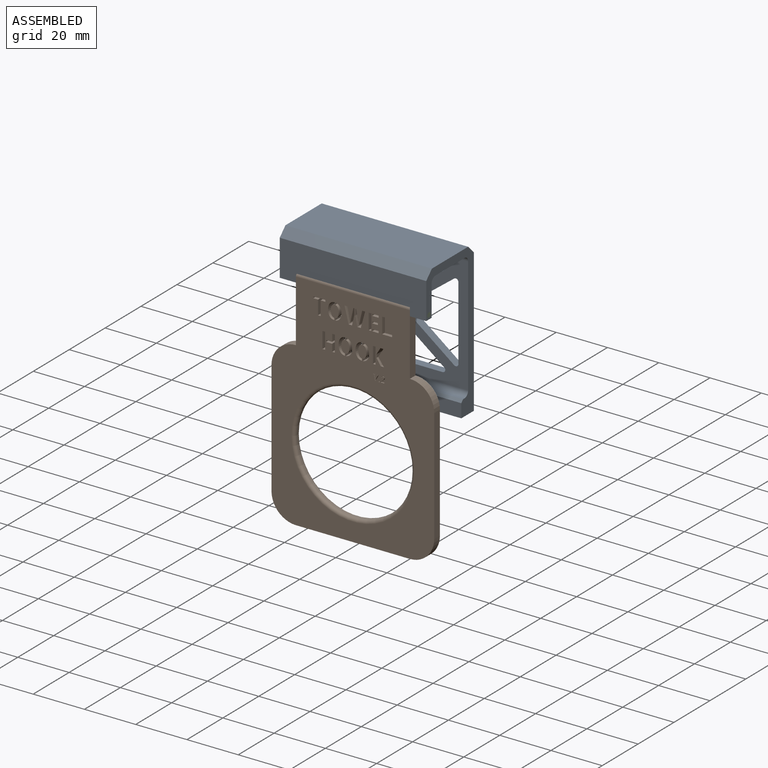
[diagram: assembled view]
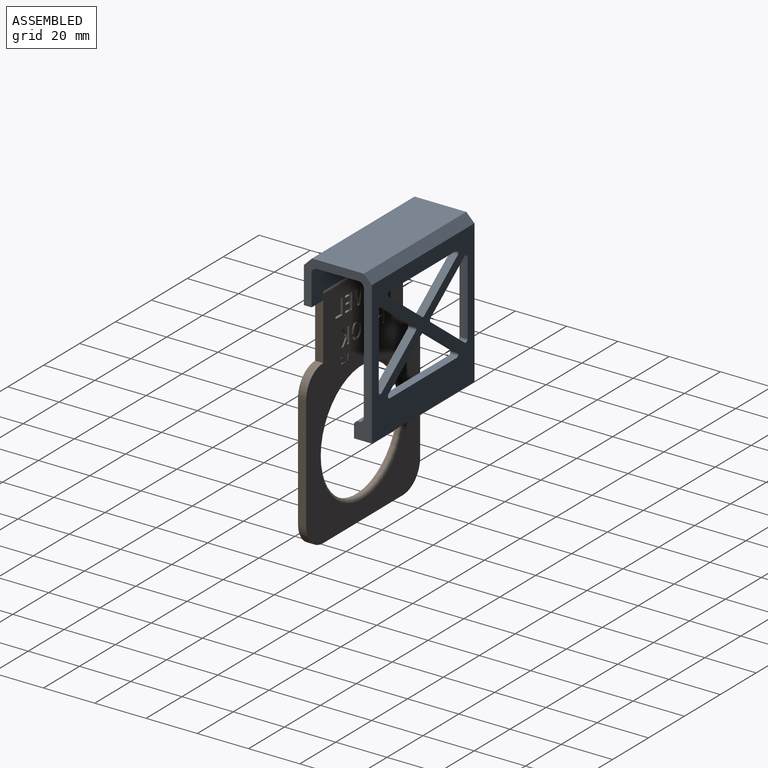
[diagram: assembled view, second angle]
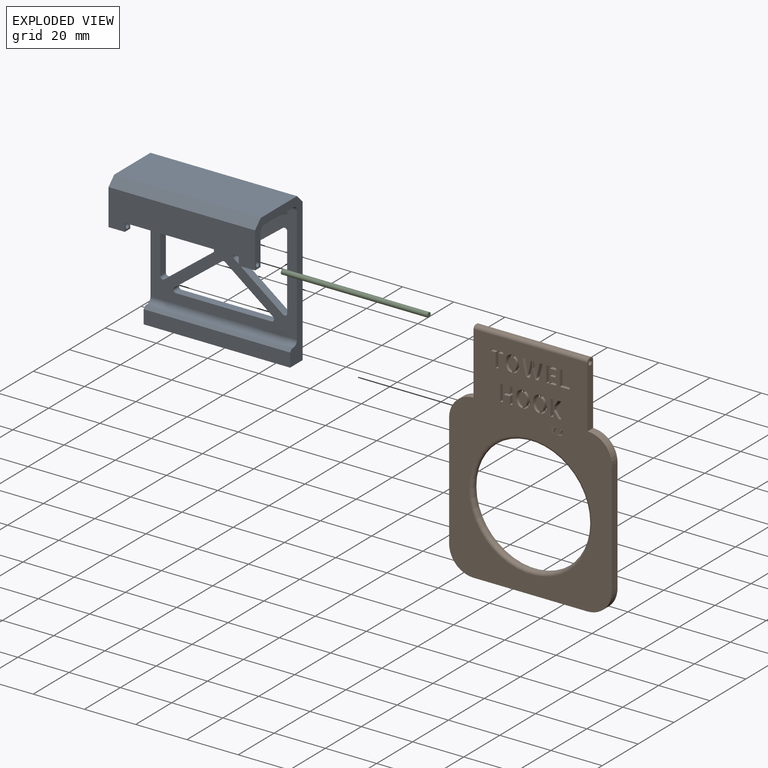
[diagram: exploded view]
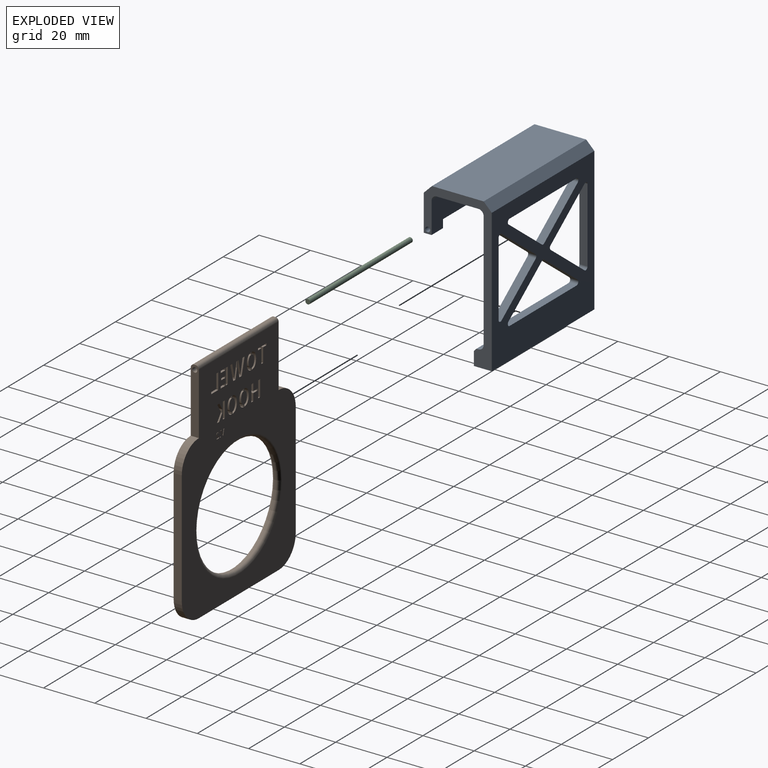
[diagram: exploded view, second angle]
ASSEMBLY  parts=3 mates=2
PART A: 48 faces, bbox 57.2x26.5x59.1 mm
  f0: plane 57.15x45.47mm, normal (0,-1,0), area 1180.6mm2, adj f11,f12,f17,f22,f24,f25,f26,f27
  f1: plane 57.15x55.88mm, normal (0,1,0), area 1775.8mm2, adj f10,f11,f12,f18,f24,f25,f26,f27
  f2: plane 6.35x3.05mm, normal (0,0,-1), area 19.4mm2, adj f3,f4,f11,f14
  f3: plane 57.15x14.12mm, normal (0,-1,0), area 665.7mm2, adj f2,f6,f11,f12,f13,f14,f15,f19
  f4: plane 57.15x12.09mm, normal (0,1,0), area 549.5mm2, adj f2,f6,f11,f12,f13,f14,f15,f16
  f5: plane 57.15x20.19mm, normal (0,0,1), area 1154mm2, adj f11,f12,f18,f19
  f6: plane 6.35x3.05mm, normal (0,0,-1), area 19.4mm2, adj f3,f4,f12,f13
  f7: plane 57.15x16.26mm, normal (0,0,-1), area 929mm2, adj f11,f12,f16,f17
  f8: plane 57.15x0.76mm, normal (0,0,1), area 43.5mm2, adj f11,f12,f22,f23
  f9: plane 57.15x5.33mm, normal (0,-1,0), area 304.8mm2, adj f10,f11,f12,f23
  f10: plane 57.15x6.99mm, normal (0,0,-1), area 399.2mm2, adj f1,f9,f11,f12
  f11: plane 59.06x26.54mm, normal (1,0,0), area 318.1mm2, adj f0,f1,f2,f3,f4,f5,f7,f8
  f12: plane 59.06x26.54mm, normal (-1,0,0), area 318.1mm2, adj f0,f1,f3,f4,f5,f6,f7,f8
  f13: plane 3.18x3.05mm, normal (1,0,0), area 6.8mm2, adj f3,f4,f6,f15,f21
  f14: plane 3.18x3.05mm, normal (-1,0,0), area 6.8mm2, adj f2,f3,f4,f15,f20
  f15: plane 44.45x3.05mm, normal (0,0,-1), area 135.5mm2, adj f3,f4,f13,f14
  f16: cylinder r=2.03mm len=57.15mm, axis (1,0,0), area 182.4mm2, adj f4,f7,f11,f12
  f17: cylinder r=2.03mm len=57.15mm, axis (1,0,0), area 182.4mm2, adj f0,f7,f11,f12
  f18: plane 57.15x3.18mm, normal (0,0.71,0.71), area 256.6mm2, adj f1,f5,f11,f12
  f19: plane 57.15x3.18mm, normal (0,-0.71,0.71), area 256.6mm2, adj f3,f5,f11,f12
  f20: cylinder r=0.95mm len=6.35mm, axis (-1,0,0), area 38mm2, adj f11,f14
  f21: cylinder r=0.95mm len=6.35mm, axis (-1,0,0), area 38mm2, adj f12,f13
  f22: cylinder r=2.03mm len=57.15mm, axis (1,0,0), area 182.4mm2, adj f0,f8,f11,f12
  f23: plane 57.15x1.02mm, normal (0,-0.71,0.71), area 82.1mm2, adj f8,f9,f11,f12
  f24: plane 37.25x3.18mm, normal (0,0,-1), area 118.3mm2, adj f0,f1,f25,f29
  f25: cylinder r=1.02mm len=3.18mm, axis (0,1,0), area 8mm2, adj f0,f1,f24,f26
  f26: plane 18.62x14.23mm, normal (-0.61,0,0.79), area 74.4mm2, adj f0,f1,f25,f27
  f27: cylinder r=1.02mm len=3.18mm, axis (0,1,0), area 4.2mm2, adj f0,f1,f26,f28
  f28: plane 18.62x14.23mm, normal (0.61,0,0.79), area 74.4mm2, adj f0,f1,f27,f29
  f29: cylinder r=1.02mm len=3.18mm, axis (0,1,0), area 8mm2, adj f0,f1,f24,f28
  f30: plane 28.94x3.18mm, normal (1,0,0), area 91.9mm2, adj f0,f1,f31,f35
  f31: cylinder r=1.02mm len=3.18mm, axis (0,1,0), area 7.2mm2, adj f0,f1,f30,f32
  f32: plane 18.94x14.47mm, normal (-0.61,0,-0.79), area 75.7mm2, adj f0,f1,f31,f33
  f33: cylinder r=1.02mm len=3.18mm, axis (0,1,0), area 5.9mm2, adj f0,f1,f32,f34
  f34: plane 18.94x14.47mm, normal (-0.61,0,0.79), area 75.7mm2, adj f0,f1,f33,f35
  f35: cylinder r=1.02mm len=3.18mm, axis (0,1,0), area 7.2mm2, adj f0,f1,f30,f34
  f36: cylinder r=1.02mm len=3.18mm, axis (0,1,0), area 8mm2, adj f0,f1,f37,f41
  f37: plane 37.25x3.18mm, normal (0,0,1), area 118.3mm2, adj f0,f1,f36,f38
  f38: cylinder r=1.02mm len=3.18mm, axis (0,1,0), area 8mm2, adj f0,f1,f37,f39
  f39: plane 18.62x14.23mm, normal (0.61,0,-0.79), area 74.4mm2, adj f0,f1,f38,f40
  f40: cylinder r=1.02mm len=3.18mm, axis (0,1,0), area 4.2mm2, adj f0,f1,f39,f41
  f41: plane 18.62x14.23mm, normal (-0.61,0,-0.79), area 74.4mm2, adj f0,f1,f36,f40
  f42: plane 18.94x14.47mm, normal (0.61,0,-0.79), area 75.7mm2, adj f0,f1,f43,f47
  f43: cylinder r=1.02mm len=3.18mm, axis (0,1,0), area 7.2mm2, adj f0,f1,f42,f44
  f44: plane 28.94x3.18mm, normal (-1,0,0), area 91.9mm2, adj f0,f1,f43,f45
  f45: cylinder r=1.02mm len=3.18mm, axis (0,1,0), area 7.2mm2, adj f0,f1,f44,f46
  f46: plane 18.94x14.47mm, normal (0.61,0,0.79), area 75.7mm2, adj f0,f1,f45,f47
  f47: cylinder r=1.02mm len=3.18mm, axis (0,1,0), area 5.9mm2, adj f0,f1,f42,f46
PART B: 240 faces, bbox 63.5x88.9x3.2 mm
  f0: plane 87.63x63.5mm, normal (0,0,1), area 3089.9mm2, adj f2,f3,f4,f5,f6,f7,f8,f9
  f1: plane 87.63x63.5mm, normal (0,0,-1), area 3089.9mm2, adj f2,f3,f4,f5,f6,f7,f8,f9
  f2: plane 44.45x3.18mm, normal (-1,0,0), area 141.1mm2, adj f0,f1,f3,f8
  f3: cylinder r=9.53mm len=9.53mm, axis (0,0,-1), area 47.5mm2, adj f0,f1,f2,f4
  f4: plane 44.45x3.18mm, normal (0,-1,0), area 141.1mm2, adj f0,f1,f3,f5
  f5: cylinder r=9.53mm len=9.53mm, axis (0,0,-1), area 47.5mm2, adj f0,f1,f4,f6
  f6: plane 44.45x3.18mm, normal (1,0,0), area 141.1mm2, adj f0,f1,f5,f7
  f7: cylinder r=9.53mm len=9.53mm, axis (0,0,-1), area 47.5mm2, adj f0,f1,f6,f10
  f8: cylinder r=9.53mm len=9.53mm, axis (0,0,-1), area 47.5mm2, adj f0,f1,f2,f9
  f9: plane 25.4x3.18mm, normal (-1,0,0), area 77.1mm2, adj f0,f1,f8,f11,f12,f13,f14
  f10: plane 25.4x3.18mm, normal (1,0,0), area 77.1mm2, adj f0,f1,f7,f11,f12,f13,f14
  f11: plane 44.45x0.64mm, normal (0,1,0), area 28.2mm2, adj f9,f10,f13,f14
  f12: cylinder r=0.95mm len=44.45mm, axis (1,0,0), area 266mm2, adj f9,f10
  f13: cylinder r=1.27mm len=44.45mm, axis (1,0,0), area 88.7mm2, adj f0,f9,f10,f11
  f14: cylinder r=1.27mm len=44.45mm, axis (-1,0,0), area 88.7mm2, adj f1,f9,f10,f11
  f15: plane 3.18x0.69mm, normal (-1,0,0), area 2.2mm2, adj f0,f1,f16,f22
  f16: plane 4.72x3.18mm, normal (0,-1,0), area 15mm2, adj f0,f1,f15,f17
  f17: plane 3.18x0.69mm, normal (1,0,0), area 2.2mm2, adj f0,f1,f16,f18
  f18: plane 3.18x1.85mm, normal (0,1,0), area 5.9mm2, adj f0,f1,f17,f19
  f19: plane 5.51x3.18mm, normal (1,0,0), area 17.5mm2, adj f0,f1,f18,f20
  f20: plane 3.18x1.02mm, normal (0,1,0), area 3.2mm2, adj f0,f1,f19,f21
  f21: plane 5.51x3.18mm, normal (-1,0,0), area 17.5mm2, adj f0,f1,f20,f22
  f22: plane 3.18x1.85mm, normal (0,1,0), area 5.9mm2, adj f0,f1,f15,f21
  f23: plane 3.18x3.09mm, normal (-0.81,-0.58,0), area 12.1mm2, adj f0,f1,f24,f29
  f24: plane 3.27x3.18mm, normal (-0.85,0.53,0), area 12.2mm2, adj f0,f1,f23,f25
  f25: plane 3.18x1.18mm, normal (0,-1,0), area 3.7mm2, adj f0,f1,f24,f26
  f26: plane 3.18x2.6mm, normal (0.86,-0.51,0), area 9.6mm2, adj f0,f1,f25,f27
  f27: plane 3.18x1.26mm, normal (1,0,0), area 4mm2, adj f0,f1,f26,f28
  f28: plane 3.18x2.5mm, normal (0.83,0.56,0), area 9.6mm2, adj f0,f1,f27,f29
  f29: plane 3.18x1.2mm, normal (0,1,0), area 3.8mm2, adj f0,f1,f23,f28
  f30: plane 3.18x0.09mm, normal (-0.98,0.18,0), area 0.3mm2, adj f0,f1,f31,f44
  f31: plane 3.18x0.69mm, normal (0,-1,0), area 2.2mm2, adj f0,f1,f30,f32
  f32: plane 3.18x0.09mm, normal (0.98,-0.21,0), area 0.3mm2, adj f0,f1,f31,f33
  f33: plane 3.18x0.26mm, normal (0.17,0.99,0), area 0.8mm2, adj f0,f1,f32,f34
  f34: plane 3.18x1.69mm, normal (0.88,-0.48,0), area 6.1mm2, adj f0,f1,f33,f35
  f35: plane 3.18x1.69mm, normal (-0.98,-0.22,0), area 5.5mm2, adj f0,f1,f34,f36
  f36: plane 3.18x0.29mm, normal (-0.15,0.99,0), area 0.9mm2, adj f0,f1,f35,f37
  f37: plane 3.18x0.09mm, normal (-0.98,0.18,0), area 0.3mm2, adj f0,f1,f36,f38
  f38: plane 3.18x0.85mm, normal (0,-1,0), area 2.7mm2, adj f0,f1,f37,f39
  f39: plane 3.18x0.09mm, normal (0.98,-0.19,0), area 0.3mm2, adj f0,f1,f38,f40
  f40: plane 3.18x0.22mm, normal (0.2,0.98,0), area 0.7mm2, adj f0,f1,f39,f41
  f41: plane 3.18x2.23mm, normal (0.97,0.22,0), area 7.3mm2, adj f0,f1,f40,f42
  f42: plane 3.18x0.09mm, normal (0,1,0), area 0.3mm2, adj f0,f1,f41,f43
  f43: plane 3.18x2.23mm, normal (-0.87,0.49,0), area 8.1mm2, adj f0,f1,f42,f44
  f44: plane 3.18x0.23mm, normal (-0.19,0.98,0), area 0.7mm2, adj f0,f1,f30,f43
  f45: extruded ~3.18x0.15mm, area 0.5mm2, adj f0,f1,f46,f52
  f46: extruded ~3.18x0.15mm, area 0.5mm2, adj f0,f1,f45,f47
  f47: extruded ~3.18x0.15mm, area 0.5mm2, adj f0,f1,f46,f48
  f48: extruded ~3.18x0.15mm, area 0.5mm2, adj f0,f1,f47,f49
  f49: extruded ~3.18x0.15mm, area 0.5mm2, adj f0,f1,f48,f50
  f50: extruded ~3.18x0.15mm, area 0.5mm2, adj f0,f1,f49,f51
  f51: extruded ~3.18x0.15mm, area 0.5mm2, adj f0,f1,f50,f52
  f52: extruded ~3.18x0.15mm, area 0.5mm2, adj f0,f1,f45,f51
  f53: plane 3.18x1.41mm, normal (0,1,0), area 4.5mm2, adj f0,f1,f54,f74
  f54: plane 3.18x0.27mm, normal (-0.99,0.17,0), area 0.9mm2, adj f0,f1,f53,f55
  f55: plane 3.18x1.17mm, normal (0,-1,0), area 3.7mm2, adj f0,f1,f54,f56
  f56: plane 3.18x0.37mm, normal (-0.58,0.81,0), area 1.4mm2, adj f0,f1,f55,f57
  f57: extruded ~3.18x0.6mm, area 2.4mm2, adj f0,f1,f56,f58
  f58: extruded ~3.18x0.41mm, area 1.7mm2, adj f0,f1,f57,f59
  f59: extruded ~3.18x0.43mm, area 1.4mm2, adj f0,f1,f58,f60
  f60: extruded ~3.18x0.37mm, area 1.3mm2, adj f0,f1,f59,f61
  f61: extruded ~3.18x0.49mm, area 1.6mm2, adj f0,f1,f60,f62
  f62: extruded ~3.18x0.55mm, area 1.8mm2, adj f0,f1,f61,f63
  f63: plane 3.18x0.44mm, normal (0.99,-0.17,0), area 1.4mm2, adj f0,f1,f62,f64
  f64: plane 3.18x0.11mm, normal (0,1,0), area 0.4mm2, adj f0,f1,f63,f65
  f65: plane 3.18x0.28mm, normal (-0.93,0.36,0), area 1mm2, adj f0,f1,f64,f66
  f66: extruded ~3.18x0.17mm, area 0.6mm2, adj f0,f1,f65,f67
  f67: extruded ~3.18x0.2mm, area 0.6mm2, adj f0,f1,f66,f68
  f68: extruded ~3.18x0.29mm, area 1mm2, adj f0,f1,f67,f69
  f69: extruded ~3.18x0.27mm, area 0.9mm2, adj f0,f1,f68,f70
  f70: extruded ~3.18x0.46mm, area 1.5mm2, adj f0,f1,f69,f71
  f71: extruded ~3.18x0.4mm, area 1.6mm2, adj f0,f1,f70,f72
  f72: extruded ~3.18x0.58mm, area 2.4mm2, adj f0,f1,f71,f73
  f73: plane 3.18x0.37mm, normal (0.59,-0.81,0), area 1.4mm2, adj f0,f1,f72,f74
  f74: plane 3.18x0.25mm, normal (0.98,-0.17,0), area 0.8mm2, adj f0,f1,f53,f73
  f75: extruded ~3.18x1.33mm, area 4.3mm2, adj f0,f1,f76,f92
  f76: extruded ~3.18x1.33mm, area 4.3mm2, adj f0,f1,f75,f77
  f77: extruded ~3.18x0.98mm, area 3.5mm2, adj f0,f1,f76,f78
  f78: extruded ~3.18x0.77mm, area 3.2mm2, adj f0,f1,f77,f79
  f79: extruded ~3.18x0.96mm, area 3.2mm2, adj f0,f1,f78,f80
  f80: plane 3.18x0.83mm, normal (-1,0,0), area 2.6mm2, adj f0,f1,f79,f81
  f81: extruded ~3.18x0.53mm, area 1.8mm2, adj f0,f1,f80,f82
  f82: extruded ~3.18x0.44mm, area 2mm2, adj f0,f1,f81,f83
  f83: extruded ~3.18x0.71mm, area 2.5mm2, adj f0,f1,f82,f84
  f84: extruded ~3.18x1.02mm, area 3.3mm2, adj f0,f1,f83,f85
  f85: extruded ~3.18x1.02mm, area 3.3mm2, adj f0,f1,f84,f86
  f86: extruded ~3.18x0.71mm, area 2.4mm2, adj f0,f1,f85,f87
  f87: extruded ~3.18x0.44mm, area 1.9mm2, adj f0,f1,f86,f88
  f88: extruded ~3.18x0.54mm, area 1.8mm2, adj f0,f1,f87,f89
  f89: plane 3.18x0.84mm, normal (-1,0,0), area 2.7mm2, adj f0,f1,f88,f90
  f90: extruded ~3.18x0.96mm, area 3.2mm2, adj f0,f1,f89,f91
  f91: extruded ~3.18x0.77mm, area 3.1mm2, adj f0,f1,f90,f92
  f92: extruded ~3.18x0.98mm, area 3.5mm2, adj f0,f1,f75,f91
  f93: extruded ~3.18x0.96mm, area 3.2mm2, adj f0,f1,f94,f110
  f94: plane 3.18x0.83mm, normal (1,0,0), area 2.6mm2, adj f0,f1,f93,f95
  f95: extruded ~3.18x0.53mm, area 1.8mm2, adj f0,f1,f94,f96
  f96: extruded ~3.18x0.44mm, area 2mm2, adj f0,f1,f95,f97
  f97: extruded ~3.18x0.71mm, area 2.4mm2, adj f0,f1,f96,f98
  f98: extruded ~3.18x1.02mm, area 3.3mm2, adj f0,f1,f97,f99
  f99: extruded ~3.18x1.02mm, area 3.3mm2, adj f0,f1,f98,f100
  f100: extruded ~3.18x0.71mm, area 2.4mm2, adj f0,f1,f99,f101
  f101: extruded ~3.18x0.44mm, area 2mm2, adj f0,f1,f100,f102
  f102: extruded ~3.18x0.54mm, area 1.8mm2, adj f0,f1,f101,f103
  f103: plane 3.18x0.83mm, normal (1,0,0), area 2.6mm2, adj f0,f1,f102,f104
  f104: extruded ~3.18x0.96mm, area 3.2mm2, adj f0,f1,f103,f105
  f105: extruded ~3.18x0.76mm, area 3.1mm2, adj f0,f1,f104,f106
  f106: extruded ~3.18x0.98mm, area 3.5mm2, adj f0,f1,f105,f107
  f107: extruded ~3.18x1.33mm, area 4.3mm2, adj f0,f1,f106,f108
  f108: extruded ~3.18x1.33mm, area 4.3mm2, adj f0,f1,f107,f109
  f109: extruded ~3.18x0.98mm, area 3.5mm2, adj f0,f1,f108,f110
  f110: extruded ~3.18x0.77mm, area 3.1mm2, adj f0,f1,f93,f109
  f111: plane 5.35x3.18mm, normal (0.98,-0.21,0), area 17.4mm2, adj f0,f1,f112,f118
  f112: plane 5.35x3.18mm, normal (-0.98,-0.2,0), area 17.3mm2, adj f0,f1,f111,f113
  f113: plane 3.18x1.14mm, normal (0,-1,0), area 3.6mm2, adj f0,f1,f112,f114
  f114: plane 6.23x3.18mm, normal (0.97,0.24,0), area 20.4mm2, adj f0,f1,f113,f115
  f115: plane 3.18x1.32mm, normal (0,1,0), area 4.2mm2, adj f0,f1,f114,f116
  f116: plane 3.99x3.18mm, normal (-0.97,0.22,0), area 13mm2, adj f0,f1,f115,f117
  f117: plane 3.18x2.25mm, normal (-1,0,0), area 7.1mm2, adj f0,f1,f116,f118
  f118: plane 3.18x0.4mm, normal (0,-1,0), area 1.3mm2, adj f0,f1,f111,f117
  f119: plane 3.18x1.14mm, normal (0,-1,0), area 3.6mm2, adj f0,f1,f120,f126
  f120: plane 5.35x3.18mm, normal (0.98,-0.22,0), area 17.4mm2, adj f0,f1,f119,f121
  f121: plane 5.35x3.18mm, normal (-0.98,-0.2,0), area 17.3mm2, adj f0,f1,f120,f122
  f122: plane 3.18x0.4mm, normal (0,-1,0), area 1.3mm2, adj f0,f1,f121,f123
  f123: plane 3.18x2.41mm, normal (1,0,0), area 7.6mm2, adj f0,f1,f122,f124
  f124: plane 3.83x3.18mm, normal (0.98,0.21,0), area 12.4mm2, adj f0,f1,f123,f125
  f125: plane 3.18x1.31mm, normal (0,1,0), area 4.2mm2, adj f0,f1,f124,f126
  f126: plane 6.23x3.18mm, normal (-0.97,0.26,0), area 20.5mm2, adj f0,f1,f119,f125
  f127: plane 3.18x0.76mm, normal (-1,0,0), area 2.4mm2, adj f0,f1,f128,f130
  f128: plane 3.18x2.51mm, normal (0,-1,0), area 8mm2, adj f0,f1,f127,f129
  f129: plane 3.18x0.76mm, normal (1,0,0), area 2.4mm2, adj f0,f1,f128,f130
  f130: plane 3.18x2.51mm, normal (0,1,0), area 8mm2, adj f0,f1,f127,f129
  f131: plane 3.18x2.51mm, normal (0,-1,0), area 8mm2, adj f0,f1,f132,f134
  f132: plane 3.18x0.77mm, normal (1,0,0), area 2.4mm2, adj f0,f1,f131,f133
  f133: plane 3.18x2.51mm, normal (0,1,0), area 8mm2, adj f0,f1,f132,f134
  f134: plane 3.18x0.77mm, normal (-1,0,0), area 2.4mm2, adj f0,f1,f131,f133
  f135: plane 3.18x2.25mm, normal (0,1,0), area 7.1mm2, adj f0,f1,f136,f138
  f136: plane 3.18x0.69mm, normal (-1,0,0), area 2.2mm2, adj f0,f1,f135,f137
  f137: plane 3.18x2.25mm, normal (0,-1,0), area 7.1mm2, adj f0,f1,f136,f138
  f138: plane 3.18x0.69mm, normal (1,0,0), area 2.2mm2, adj f0,f1,f135,f137
  f139: plane 3.18x1.03mm, normal (0,-1,0), area 3.3mm2, adj f0,f1,f140,f142
  f140: plane 6.2x3.18mm, normal (1,0,0), area 19.7mm2, adj f0,f1,f139,f141
  f141: plane 3.18x1.03mm, normal (0,1,0), area 3.3mm2, adj f0,f1,f140,f142
  f142: plane 6.2x3.18mm, normal (-1,0,0), area 19.7mm2, adj f0,f1,f139,f141
  f143: plane 6.36x3.18mm, normal (1,0,0), area 20.2mm2, adj f0,f1,f144,f146
  f144: plane 3.18x1.05mm, normal (0,1,0), area 3.3mm2, adj f0,f1,f143,f145
  f145: plane 6.36x3.18mm, normal (-1,0,0), area 20.2mm2, adj f0,f1,f144,f146
  f146: plane 3.18x1.05mm, normal (0,-1,0), area 3.3mm2, adj f0,f1,f143,f145
  f147: extruded ~3.18x0.98mm, area 3.2mm2, adj f0,f1,f148,f164
  f148: plane 3.18x0.85mm, normal (1,0,0), area 2.7mm2, adj f0,f1,f147,f149
  f149: extruded ~3.18x0.54mm, area 1.8mm2, adj f0,f1,f148,f150
  f150: extruded ~3.18x0.45mm, area 2mm2, adj f0,f1,f149,f151
  f151: extruded ~3.18x0.72mm, area 2.5mm2, adj f0,f1,f150,f152
  f152: extruded ~3.18x1.05mm, area 3.4mm2, adj f0,f1,f151,f153
  f153: extruded ~3.18x1.05mm, area 3.4mm2, adj f0,f1,f152,f154
  f154: extruded ~3.18x0.72mm, area 2.5mm2, adj f0,f1,f153,f155
  f155: extruded ~3.18x0.45mm, area 2mm2, adj f0,f1,f154,f156
  f156: extruded ~3.18x0.55mm, area 1.9mm2, adj f0,f1,f155,f157
  f157: plane 3.18x0.85mm, normal (1,0,0), area 2.7mm2, adj f0,f1,f156,f158
  f158: extruded ~3.18x0.98mm, area 3.2mm2, adj f0,f1,f157,f159
  f159: extruded ~3.18x0.78mm, area 3.2mm2, adj f0,f1,f158,f160
  f160: extruded ~3.18x1mm, area 3.6mm2, adj f0,f1,f159,f161
  f161: extruded ~3.18x1.36mm, area 4.4mm2, adj f0,f1,f160,f162
  f162: extruded ~3.18x1.36mm, area 4.4mm2, adj f0,f1,f161,f163
  f163: extruded ~3.18x1mm, area 3.6mm2, adj f0,f1,f162,f164
  f164: extruded ~3.18x0.79mm, area 3.2mm2, adj f0,f1,f147,f163
  f165: extruded ~3.18x1.36mm, area 4.4mm2, adj f0,f1,f166,f182
  f166: extruded ~3.18x1.36mm, area 4.4mm2, adj f0,f1,f165,f167
  f167: extruded ~3.18x1mm, area 3.6mm2, adj f0,f1,f166,f168
  f168: extruded ~3.18x0.79mm, area 3.2mm2, adj f0,f1,f167,f169
  f169: extruded ~3.18x0.98mm, area 3.2mm2, adj f0,f1,f168,f170
  f170: plane 3.18x0.85mm, normal (-1,0,0), area 2.7mm2, adj f0,f1,f169,f171
  f171: extruded ~3.18x0.54mm, area 1.8mm2, adj f0,f1,f170,f172
  f172: extruded ~3.18x0.45mm, area 2mm2, adj f0,f1,f171,f173
  f173: extruded ~3.18x0.73mm, area 2.5mm2, adj f0,f1,f172,f174
  f174: extruded ~3.18x1.05mm, area 3.4mm2, adj f0,f1,f173,f175
  f175: extruded ~3.18x1.04mm, area 3.3mm2, adj f0,f1,f174,f176
  f176: extruded ~3.18x0.72mm, area 2.5mm2, adj f0,f1,f175,f177
  f177: extruded ~3.18x0.45mm, area 2mm2, adj f0,f1,f176,f178
  f178: extruded ~3.18x0.55mm, area 1.9mm2, adj f0,f1,f177,f179
  f179: plane 3.18x0.86mm, normal (-1,0,0), area 2.7mm2, adj f0,f1,f178,f180
  f180: extruded ~3.18x0.99mm, area 3.3mm2, adj f0,f1,f179,f181
  f181: extruded ~3.18x0.79mm, area 3.2mm2, adj f0,f1,f180,f182
  f182: extruded ~3.18x1mm, area 3.6mm2, adj f0,f1,f165,f181
  f183: extruded ~3.18x0.98mm, area 3.2mm2, adj f0,f1,f184,f200
  f184: plane 3.18x0.85mm, normal (1,0,0), area 2.7mm2, adj f0,f1,f183,f185
  f185: extruded ~3.18x0.54mm, area 1.8mm2, adj f0,f1,f184,f186
  f186: extruded ~3.18x0.45mm, area 2mm2, adj f0,f1,f185,f187
  f187: extruded ~3.18x0.72mm, area 2.5mm2, adj f0,f1,f186,f188
  f188: extruded ~3.18x1.05mm, area 3.4mm2, adj f0,f1,f187,f189
  f189: extruded ~3.18x1.05mm, area 3.4mm2, adj f0,f1,f188,f190
  f190: extruded ~3.18x0.72mm, area 2.5mm2, adj f0,f1,f189,f191
  f191: extruded ~3.18x0.45mm, area 2mm2, adj f0,f1,f190,f192
  f192: extruded ~3.18x0.55mm, area 1.9mm2, adj f0,f1,f191,f193
  f193: plane 3.18x0.85mm, normal (1,0,0), area 2.7mm2, adj f0,f1,f192,f194
  f194: extruded ~3.18x0.98mm, area 3.2mm2, adj f0,f1,f193,f195
  f195: extruded ~3.18x0.78mm, area 3.2mm2, adj f0,f1,f194,f196
  f196: extruded ~3.18x1mm, area 3.6mm2, adj f0,f1,f195,f197
  f197: extruded ~3.18x1.36mm, area 4.4mm2, adj f0,f1,f196,f198
  f198: extruded ~3.18x1.36mm, area 4.4mm2, adj f0,f1,f197,f199
  f199: extruded ~3.18x1mm, area 3.6mm2, adj f0,f1,f198,f200
  f200: extruded ~3.18x0.79mm, area 3.2mm2, adj f0,f1,f183,f199
  f201: plane 5.43x3.18mm, normal (-1,0,0), area 17.3mm2, adj f0,f1,f202,f206
  f202: plane 3.18x1.03mm, normal (0,-1,0), area 3.3mm2, adj f0,f1,f201,f203
  f203: plane 6.2x3.18mm, normal (1,0,0), area 19.7mm2, adj f0,f1,f202,f204
  f204: plane 3.88x3.18mm, normal (0,1,0), area 12.3mm2, adj f0,f1,f203,f205
  f205: plane 3.18x0.77mm, normal (-1,0,0), area 2.4mm2, adj f0,f1,f204,f206
  f206: plane 3.18x2.85mm, normal (0,-1,0), area 9.1mm2, adj f0,f1,f201,f205
  f207: plane 6.36x3.18mm, normal (-1,0,0), area 20.2mm2, adj f0,f1,f208,f214
  f208: plane 3.18x1.04mm, normal (0,-1,0), area 3.3mm2, adj f0,f1,f207,f209
  f209: plane 3.18x2.78mm, normal (1,0,0), area 8.8mm2, adj f0,f1,f208,f210
  f210: plane 3.18x2.4mm, normal (0,-1,0), area 7.6mm2, adj f0,f1,f209,f211
  f211: plane 3.18x0.71mm, normal (1,0,0), area 2.2mm2, adj f0,f1,f210,f212
  f212: plane 3.18x2.4mm, normal (0,1,0), area 7.6mm2, adj f0,f1,f211,f213
  f213: plane 3.18x2.86mm, normal (1,0,0), area 9.1mm2, adj f0,f1,f212,f214
  f214: plane 3.18x1.04mm, normal (0,1,0), area 3.3mm2, adj f0,f1,f207,f213
  f215: plane 3.18x1.05mm, normal (0,-1,0), area 3.3mm2, adj f0,f1,f216,f218
  f216: plane 6.36x3.18mm, normal (1,0,0), area 20.2mm2, adj f0,f1,f215,f217
  f217: plane 3.18x1.05mm, normal (0,1,0), area 3.3mm2, adj f0,f1,f216,f218
  f218: plane 6.36x3.18mm, normal (-1,0,0), area 20.2mm2, adj f0,f1,f215,f217
  f219: extruded ~3.18x1.36mm, area 4.4mm2, adj f0,f1,f220,f236
  f220: extruded ~3.18x1.36mm, area 4.4mm2, adj f0,f1,f219,f221
  f221: extruded ~3.18x1mm, area 3.6mm2, adj f0,f1,f220,f222
  f222: extruded ~3.18x0.79mm, area 3.2mm2, adj f0,f1,f221,f223
  f223: extruded ~3.18x0.98mm, area 3.2mm2, adj f0,f1,f222,f224
  f224: plane 3.18x0.85mm, normal (-1,0,0), area 2.7mm2, adj f0,f1,f223,f225
  f225: extruded ~3.18x0.54mm, area 1.8mm2, adj f0,f1,f224,f226
  f226: extruded ~3.18x0.45mm, area 2mm2, adj f0,f1,f225,f227
  f227: extruded ~3.18x0.73mm, area 2.5mm2, adj f0,f1,f226,f228
  f228: extruded ~3.18x1.05mm, area 3.4mm2, adj f0,f1,f227,f229
  f229: extruded ~3.18x1.04mm, area 3.3mm2, adj f0,f1,f228,f230
  f230: extruded ~3.18x0.72mm, area 2.5mm2, adj f0,f1,f229,f231
  f231: extruded ~3.18x0.45mm, area 2mm2, adj f0,f1,f230,f232
  f232: extruded ~3.18x0.55mm, area 1.9mm2, adj f0,f1,f231,f233
  f233: plane 3.18x0.86mm, normal (-1,0,0), area 2.7mm2, adj f0,f1,f232,f234
  f234: extruded ~3.18x0.99mm, area 3.3mm2, adj f0,f1,f233,f235
  f235: extruded ~3.18x0.79mm, area 3.2mm2, adj f0,f1,f234,f236
  f236: extruded ~3.18x1mm, area 3.6mm2, adj f0,f1,f219,f235
  f237: cylinder r=22.74mm len=45.48mm, axis (0,0,1), area 90.7mm2, adj f238,f239
  f238: torus R=24.01mm, axis (0,0,1), area 290.8mm2, adj f0,f237
  f239: torus R=24.01mm, axis (0,0,1), area 290.8mm2, adj f1,f237
PART C: 3 faces, bbox 57.2x1.9x1.9 mm
  f0: cylinder r=0.95mm len=57.15mm, axis (1,0,0), area 342mm2, adj f1,f2
  f1: plane 1.91x1.91mm, normal (-1,0,0), area 2.9mm2, adj f0
  f2: plane 1.91x1.91mm, normal (1,0,0), area 2.9mm2, adj f0
PLACE A t=(-48.54,2.04,30.52)mm fixed
PLACE B rot(axis=(1,0,0),90deg) t=(-19.97,-7.3,-26.46)mm
PLACE C t=(-13.62,-64.26,27.32)mm
MATE fastened C.f0 <-> A.f20  axis (1,0,0) through (8.61,-8.89,28.91)mm
MATE revolute B.f12 <-> A.f20  axis (-1,0,0) through (-42.19,-8.89,28.91)mm
